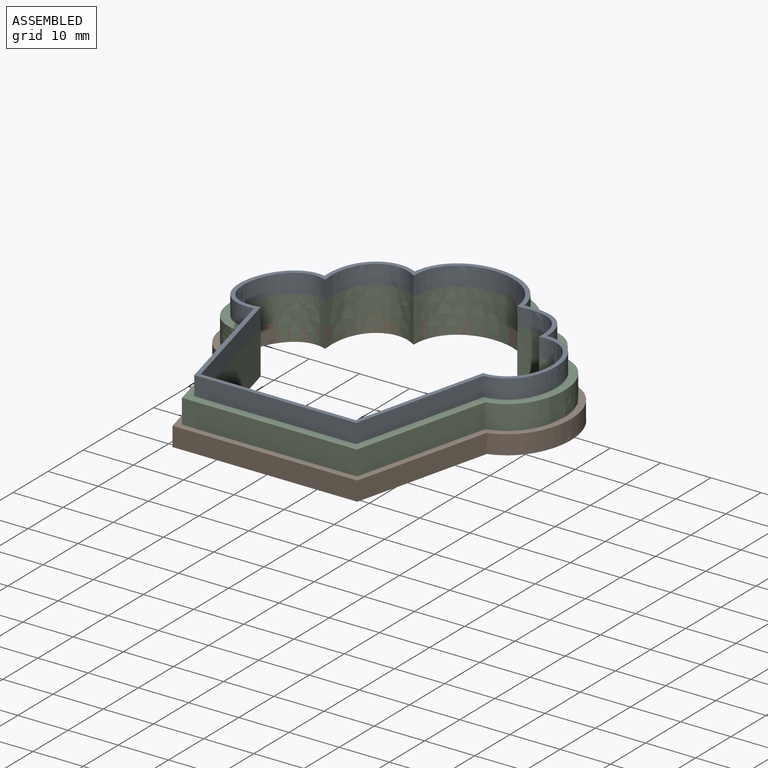
[diagram: assembled view]
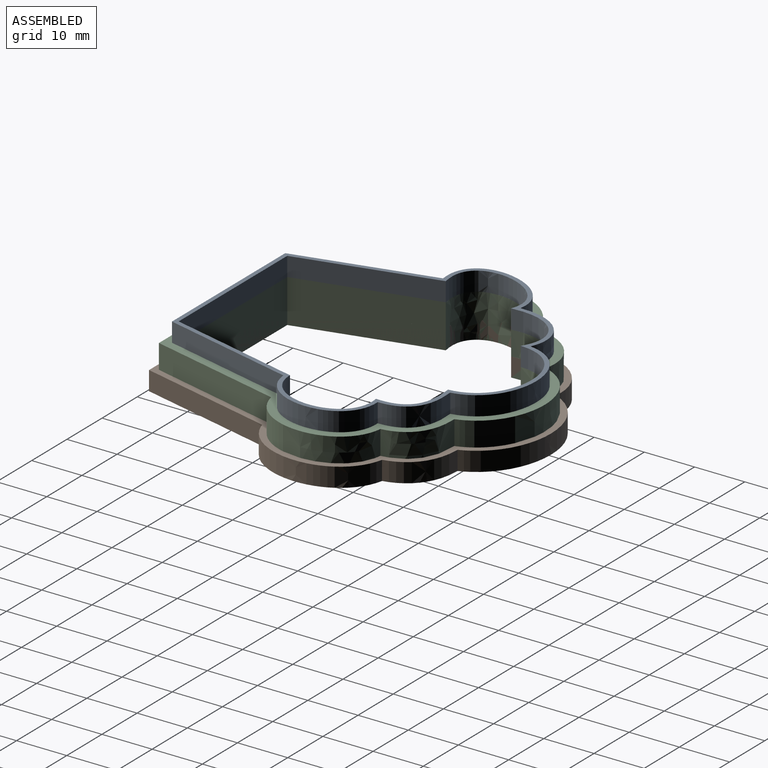
[diagram: assembled view, second angle]
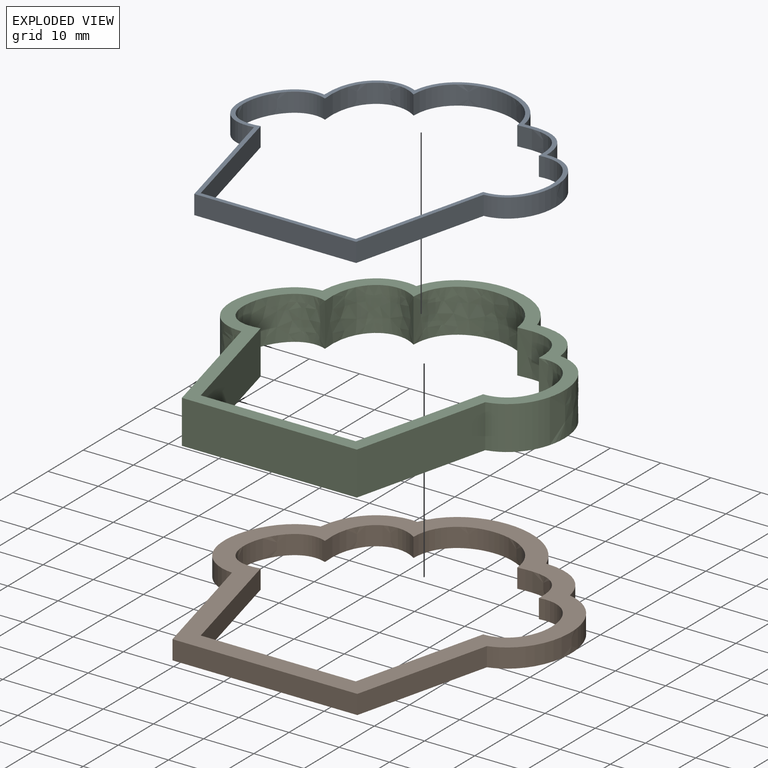
[diagram: exploded view]
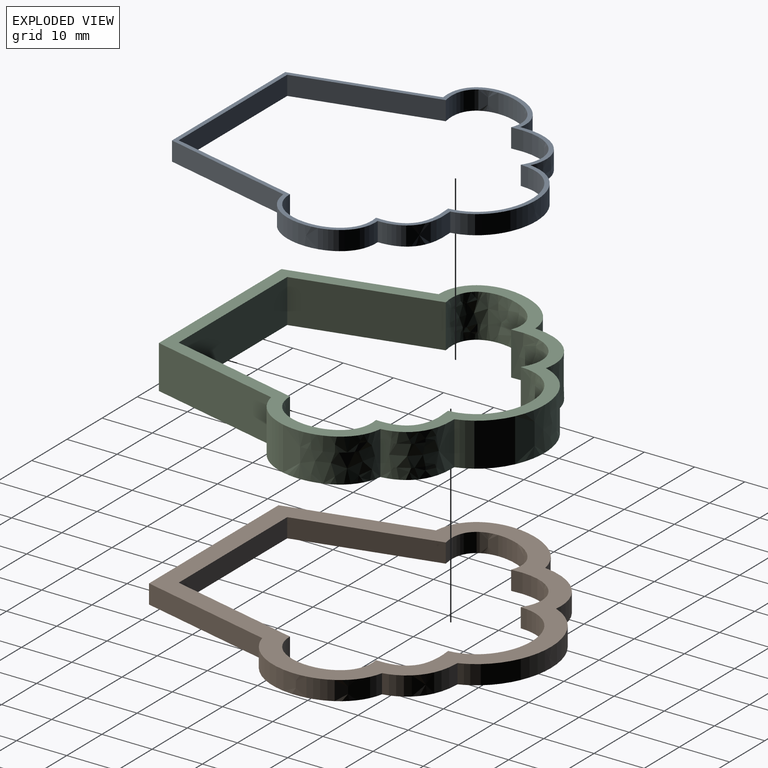
[diagram: exploded view, second angle]
ASSEMBLY  parts=3 mates=2
PART A: 18 faces, bbox 63.7x63.3x3.8 mm
  f0: plane 63.74x63.33mm, normal (0,0,1), area 176.4mm2, adj f2,f3,f4,f5,f6,f7,f8,f9
  f1: plane 63.74x63.33mm, normal (0,0,-1), area 176.4mm2, adj f2,f3,f4,f5,f6,f7,f8,f9
  f2: plane 26.83x6.62mm, normal (0.97,-0.24,0), area 105.3mm2, adj f0,f1,f3,f9
  f3: extruded ~18.51x8.05mm, area 103.3mm2, adj f0,f1,f2,f4
  f4: extruded ~9.78x7.67mm, area 55.1mm2, adj f0,f1,f3,f5
  f5: extruded ~22.17x8.96mm, area 117.5mm2, adj f0,f1,f4,f6
  f6: extruded ~11.14x10.6mm, area 69.4mm2, adj f0,f1,f5,f7
  f7: extruded ~17.13x9.65mm, area 105.4mm2, adj f0,f1,f6,f8
  f8: plane 26.67x6.8mm, normal (-0.97,-0.25,0), area 104.9mm2, adj f0,f1,f7,f9
  f9: plane 32.23x3.81mm, normal (0,-1,0), area 122.8mm2, adj f0,f1,f2,f8
  f10: plane 26.8x6.62mm, normal (-0.97,0.24,0), area 105.2mm2, adj f0,f1,f11,f17
  f11: extruded ~16.82x8.07mm, area 99mm2, adj f0,f1,f10,f12
  f12: extruded ~9.67x7.77mm, area 56.5mm2, adj f0,f1,f11,f13
  f13: extruded ~20.66x9.04mm, area 116.3mm2, adj f0,f1,f12,f14
  f14: extruded ~11.03x10.92mm, area 72.3mm2, adj f0,f1,f13,f15
  f15: extruded ~15.41x9.75mm, area 101.3mm2, adj f0,f1,f14,f16
  f16: plane 26.8x6.83mm, normal (0.97,0.25,0), area 105.4mm2, adj f0,f1,f15,f17
  f17: plane 30.88x3.81mm, normal (0,1,0), area 117.7mm2, adj f0,f1,f10,f16
PART B: 18 faces, bbox 66.7x67.8x3.8 mm
  f0: plane 67.79x66.68mm, normal (0,0,1), area 802.8mm2, adj f2,f3,f4,f5,f6,f7,f8,f9
  f1: plane 67.79x66.68mm, normal (0,0,-1), area 802.8mm2, adj f2,f3,f4,f5,f6,f7,f8,f9
  f2: plane 27.23x6.72mm, normal (0.97,-0.24,0), area 106.9mm2, adj f0,f1,f3,f9
  f3: extruded ~23.78x8.31mm, area 119mm2, adj f0,f1,f2,f4
  f4: extruded ~10.24x7.88mm, area 53.7mm2, adj f0,f1,f3,f5
  f5: extruded ~26.45x8.89mm, area 126.6mm2, adj f0,f1,f4,f6
  f6: extruded ~11.89x10.59mm, area 67.5mm2, adj f0,f1,f5,f7
  f7: extruded ~22.88x9.79mm, area 121.2mm2, adj f0,f1,f6,f8
  f8: plane 26.61x6.79mm, normal (-0.97,-0.25,0), area 104.6mm2, adj f0,f1,f7,f9
  f9: plane 36.82x3.81mm, normal (0,-1,0), area 140.3mm2, adj f0,f1,f2,f8
  f10: plane 26.8x6.62mm, normal (-0.97,0.24,0), area 105.2mm2, adj f0,f1,f11,f17
  f11: extruded ~16.82x8.07mm, area 99mm2, adj f0,f1,f10,f12
  f12: extruded ~9.67x7.77mm, area 56.5mm2, adj f0,f1,f11,f13
  f13: extruded ~20.66x9.04mm, area 116.3mm2, adj f0,f1,f12,f14
  f14: extruded ~11.03x10.92mm, area 72.3mm2, adj f0,f1,f13,f15
  f15: extruded ~15.41x9.75mm, area 101.3mm2, adj f0,f1,f14,f16
  f16: plane 26.8x6.83mm, normal (0.97,0.25,0), area 105.4mm2, adj f0,f1,f15,f17
  f17: plane 30.88x3.81mm, normal (0,1,0), area 117.7mm2, adj f0,f1,f10,f16
PART C: 18 faces, bbox 64.1x65.2x8.6 mm
  f0: plane 65.25x64.14mm, normal (0,0,1), area 527.3mm2, adj f2,f3,f4,f5,f6,f7,f8,f9
  f1: plane 65.25x64.14mm, normal (0,0,-1), area 527.3mm2, adj f2,f3,f4,f5,f6,f7,f8,f9
  f2: plane 27.01x8.64mm, normal (0.97,-0.24,0), area 240.3mm2, adj f0,f1,f3,f9
  f3: extruded ~21.63x8.64mm, area 254.2mm2, adj f0,f1,f2,f4
  f4: extruded ~10.04x8.64mm, area 122.1mm2, adj f0,f1,f3,f5
  f5: extruded ~24.71x8.89mm, area 277mm2, adj f0,f1,f4,f6
  f6: extruded ~11.55x10.47mm, area 153mm2, adj f0,f1,f5,f7
  f7: extruded ~20.49x9.68mm, area 258.9mm2, adj f0,f1,f6,f8
  f8: plane 26.58x8.64mm, normal (-0.97,-0.25,0), area 236.9mm2, adj f0,f1,f7,f9
  f9: plane 34.84x8.64mm, normal (0,-1,0), area 300.9mm2, adj f0,f1,f2,f8
  f10: plane 26.8x8.64mm, normal (-0.97,0.24,0), area 238.4mm2, adj f0,f1,f11,f17
  f11: extruded ~16.82x8.64mm, area 224.4mm2, adj f0,f1,f10,f12
  f12: extruded ~9.67x8.64mm, area 128mm2, adj f0,f1,f11,f13
  f13: extruded ~20.66x9.04mm, area 263.6mm2, adj f0,f1,f12,f14
  f14: extruded ~11.03x10.92mm, area 163.8mm2, adj f0,f1,f13,f15
  f15: extruded ~15.41x9.75mm, area 229.7mm2, adj f0,f1,f14,f16
  f16: plane 26.8x8.64mm, normal (0.97,0.25,0), area 238.8mm2, adj f0,f1,f15,f17
  f17: plane 30.88x8.64mm, normal (0,1,0), area 266.7mm2, adj f0,f1,f10,f16
PLACE A t=(73.36,18.48,8.64)mm
PLACE B at identity
PLACE C t=(183,4.68,0)mm
MATE fastened C.f1 <-> B.f1  axis (0,0,1) through (46.38,19.95,0)mm
MATE fastened A.f1 <-> C.f0  axis (0,0,1) through (48.87,34.69,8.64)mm
